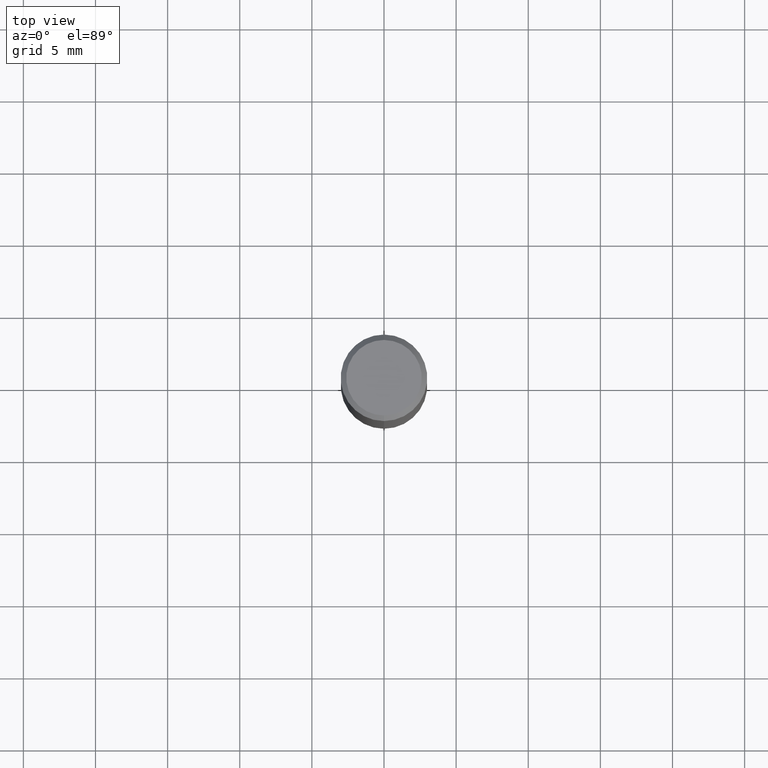
[diagram: clean part render]
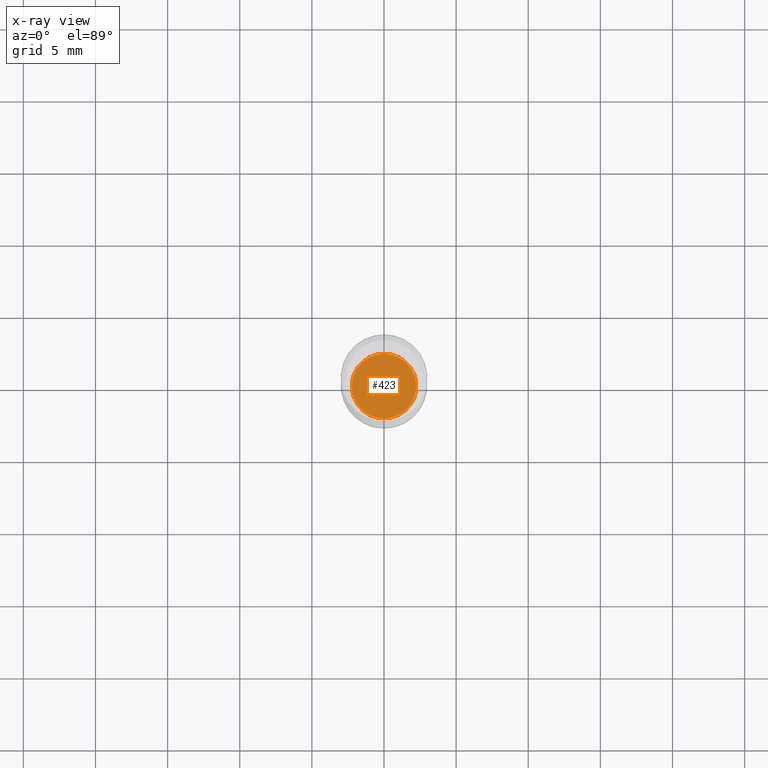
[diagram: x-ray — body ghosted, one internal face saturated and labeled with its STEP entity id]
A machine part, top view, then the same camera in x-ray: the body is ghosted and one INTERNAL B-rep face — a face not visible from any outside direction — is saturated and labeled: STEP entity #423.
In plain terms, the highlighted planar face has unit normal (-0, 0, 1).
Its self-contained STEP definition (entity closure, byte-faithful):
#2 = CARTESIAN_POINT ( 'NONE',  ( 6.277645070440807445E-16, 0.08809999999999532094, -1.338600000000000234 ) ) ;
#27 = DIRECTION ( 'NONE',  ( -6.982962677686265133E-15, -1.000000000000000000, 3.100849027995758518E-15 ) ) ;
#38 = DIRECTION ( 'NONE',  ( -2.445312692479667883E-29, 3.491704902554816982E-15, 1.000000000000000000 ) ) ;
#43 = VERTEX_POINT ( 'NONE', #2 ) ;
#56 = AXIS2_PLACEMENT_3D ( 'NONE', #282, #38, #442 ) ;
#69 = DIRECTION ( 'NONE',  ( -6.982962677686265922E-15, -1.000000000000000000, 3.491704902554816982E-15 ) ) ;
#79 = ORIENTED_EDGE ( 'NONE', *, *, #111, .F. ) ;
#111 = EDGE_CURVE ( 'NONE', #312, #43, #384, .T. ) ;
#117 = CIRCLE ( 'NONE', #186, 0.08809999999999999776 ) ;
#155 = FACE_OUTER_BOUND ( 'NONE', #320, .T. ) ;
#182 = DIRECTION ( 'NONE',  ( -2.445312692479667602E-29, 3.491704902554816982E-15, 1.000000000000000000 ) ) ;
#184 = CARTESIAN_POINT ( 'NONE',  ( 3.273295570153283701E-29, -4.673996182559878604E-15, -1.338600000000000012 ) ) ;
#186 = AXIS2_PLACEMENT_3D ( 'NONE', #219, #338, #27 ) ;
#204 = CARTESIAN_POINT ( 'NONE',  ( -6.151990119041272080E-16, -0.08810000000000467457, -1.338599999999999790 ) ) ;
#219 = CARTESIAN_POINT ( 'NONE',  ( 3.273295570153283701E-29, -4.673996182559878604E-15, -1.338600000000000012 ) ) ;
#282 = CARTESIAN_POINT ( 'NONE',  ( 3.273295570153283701E-29, -4.673996182559878604E-15, -1.338600000000000012 ) ) ;
#299 = AXIS2_PLACEMENT_3D ( 'NONE', #184, #182, #69 ) ;
#312 = VERTEX_POINT ( 'NONE', #204 ) ;
#320 = EDGE_LOOP ( 'NONE', ( #79, #471 ) ) ;
#333 = EDGE_CURVE ( 'NONE', #43, #312, #117, .T. ) ;
#338 = DIRECTION ( 'NONE',  ( -2.445312692479667883E-29, 3.491704902554816982E-15, 1.000000000000000000 ) ) ;
#377 = PLANE ( 'NONE',  #299 ) ;
#384 = CIRCLE ( 'NONE', #56, 0.08809999999999999776 ) ;
#423 = ADVANCED_FACE ( 'NONE', ( #155 ), #377, .F. ) ;
#442 = DIRECTION ( 'NONE',  ( -6.982962677686265133E-15, -1.000000000000000000, 3.100849027995758518E-15 ) ) ;
#471 = ORIENTED_EDGE ( 'NONE', *, *, #333, .F. ) ;